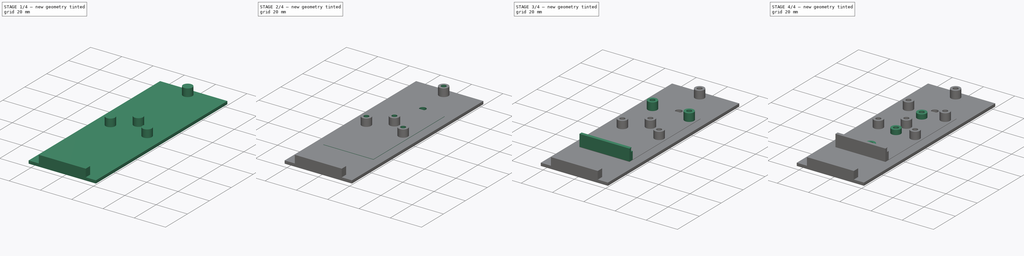
[diagram: build sequence overview — one tinted view per stage of 4, left to right]
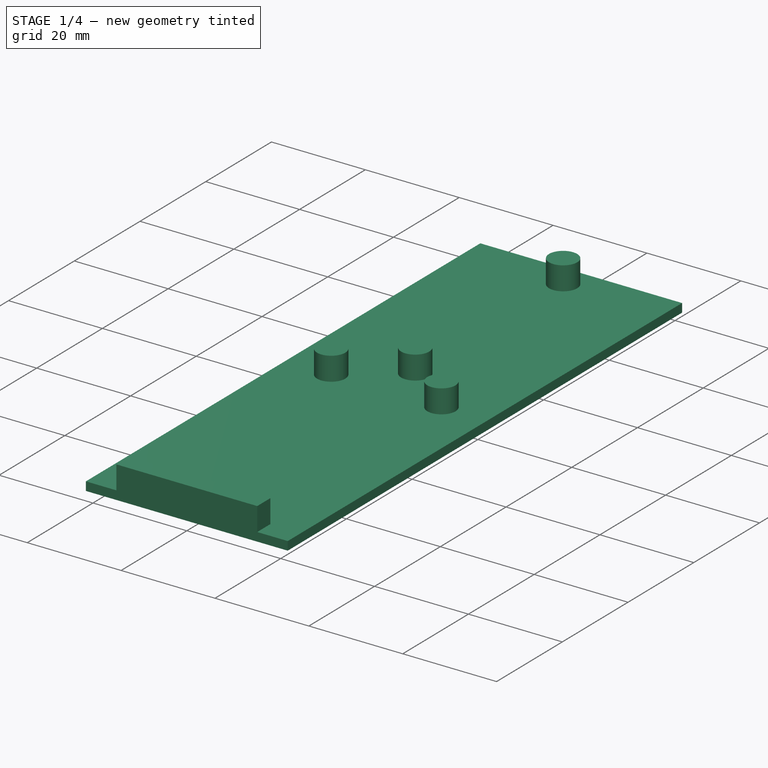
[diagram: stage 1 of 4 — iso view after this stage's code; geometry added in this stage tinted green]
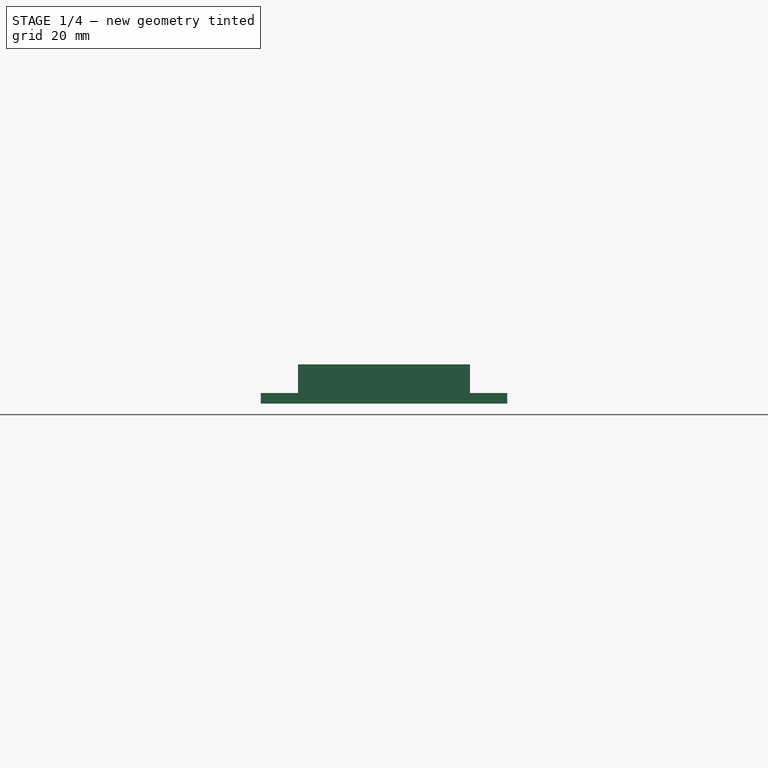
[diagram: stage 1 of 4 — front view after this stage's code; geometry added in this stage tinted green]
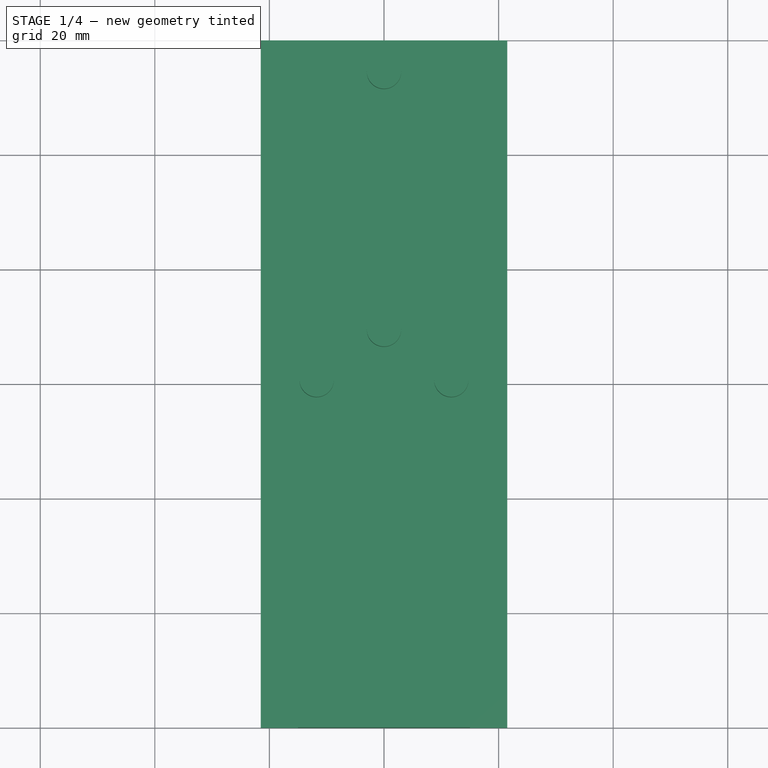
[diagram: stage 1 of 4 — top view after this stage's code; geometry added in this stage tinted green]
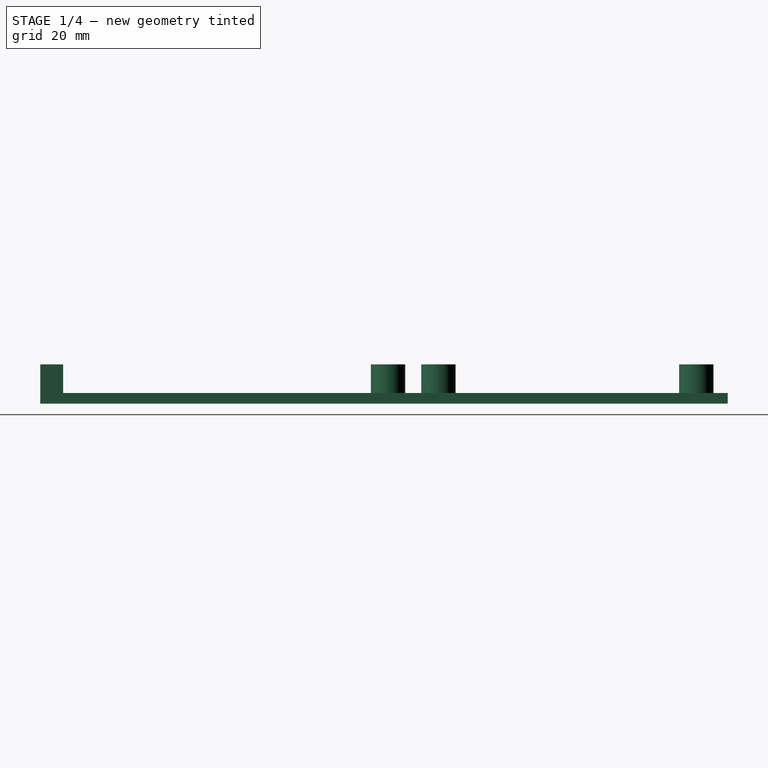
[diagram: stage 1 of 4 — right view after this stage's code; geometry added in this stage tinted green]
FCSTD DOCUMENT  (FreeCAD 0.20R)
Label: dimmer
License: All rights reserved
LicenseURL: http://en.wikipedia.org/wiki/All_rights_reserved
objects: Sketcher::SketchObject×7, PartDesign::Pad×6, PartDesign::Hole×3, PartDesign::Body×2, PartDesign::Pocket×1
note: 29 computed .brp shape members not serialized (recipe doc carries the construction recipe); baked Part::Feature solids carry a one-line shape summary decoded from their .brp

FEATURE [PartDesign::Body] Body  label="pwm_control_plate"
  Group = -> [Sketch,Pad,Sketch002,Pad001,Sketch003,Hole,Pad002,Sketch004,Pad003,Hole001]
  Origin = -> Origin
  Tip = -> Hole001
FEATURE [Sketcher::SketchObject] Sketch005
  FullyConstrained = false
  MapMode = 5
  Support = -> [XY_Plane001]
  sketch-geometry (4):
    g0: LineSegment StartX=-21.5 StartY=60 StartZ=0 EndX=21.5 EndY=60 EndZ=0
    g1: LineSegment StartX=21.5 StartY=60 StartZ=0 EndX=21.5 EndY=-60 EndZ=0
    g2: LineSegment StartX=21.5 StartY=-60 StartZ=0 EndX=-21.5 EndY=-60 EndZ=0
    g3: LineSegment StartX=-21.5 StartY=-60 StartZ=0 EndX=-21.5 EndY=60 EndZ=0
  constraints (10):
    c: Coincident(g0,g1)
    c: Coincident(g1,g2)
    c: Coincident(g2,g3)
    c: Coincident(g3,g0)
    c: Horizontal(g2)
    c: Vertical(g1)
    c: Symmetric(g0,g0,g-2)
    c: Symmetric(g2,g0,g-1)
    c: DistanceY(g3,g3) = 120
    c: DistanceX(g0,g0) = 43
FEATURE [PartDesign::Pad] Pad004  label="площадка основания001"
  Direction = (1,1,1)
  Length = 1.85
  Length2 = 100
  Profile = -> Sketch005
  Type = 0
FEATURE [Sketcher::SketchObject] Sketch006
  ExternalGeometry = -> [Pad004]
  FullyConstrained = false
  MapMode = 5
  Placement = pos=(0,0,1.85) rot=(0,0,1;0rad)
  Support = -> [Pad004]
  sketch-geometry (18):
    g0: Circle CenterX=0 CenterY=54.5 CenterZ=0 NormalX=0 NormalY=0 NormalZ=1 AngleXU=0 Radius=3
    g1: Circle CenterX=0 CenterY=9.5 CenterZ=0 NormalX=0 NormalY=0 NormalZ=1 AngleXU=0 Radius=3
    g2: LineSegment StartX=-21.1 StartY=59 StartZ=0 EndX=21.1 EndY=59 EndZ=0
    g3: LineSegment StartX=21.1 StartY=59 StartZ=0 EndX=21.1 EndY=5 EndZ=0
    g4: LineSegment StartX=21.1 StartY=5 StartZ=0 EndX=-21.1 EndY=5 EndZ=0
    g5: LineSegment StartX=-21.1 StartY=5 StartZ=0 EndX=-21.1 EndY=59 EndZ=0
    g6: LineSegment StartX=0 StartY=54.5 StartZ=0 EndX=0 EndY=59 EndZ=0
    g7: LineSegment StartX=0 StartY=9.5 StartZ=0 EndX=0 EndY=5 EndZ=0
    g8: LineSegment StartX=-15 StartY=4 StartZ=0 EndX=15 EndY=4 EndZ=0
    g9: LineSegment StartX=15 StartY=4 StartZ=0 EndX=15 EndY=-59 EndZ=0
    g10: LineSegment StartX=15 StartY=-59 StartZ=0 EndX=-15 EndY=-59 EndZ=0
    g11: LineSegment StartX=-15 StartY=-59 StartZ=0 EndX=-15 EndY=4 EndZ=0
    g12: Circle CenterX=-11.75 CenterY=0.7 CenterZ=0 NormalX=0 NormalY=0 NormalZ=1 AngleXU=0 Radius=3
    g13: Circle CenterX=11.75 CenterY=0.7 CenterZ=0 NormalX=0 NormalY=0 NormalZ=1 AngleXU=0 Radius=3
    g14: LineSegment StartX=-15 StartY=-60 StartZ=0 EndX=15 EndY=-60 EndZ=0
    g15: LineSegment StartX=15 StartY=-60 StartZ=0 EndX=15 EndY=-56 EndZ=0
    g16: LineSegment StartX=15 StartY=-56 StartZ=0 EndX=-15 EndY=-56 EndZ=0
    g17: LineSegment StartX=-15 StartY=-56 StartZ=0 EndX=-15 EndY=-60 EndZ=0
  constraints (47):
    c: PointOnObject(g0,g-2)
    c: PointOnObject(g1,g-2)
    c: DistanceY(g1,g0) = 45
    c: Coincident(g2,g3)
    c: Coincident(g3,g4)
    c: Coincident(g4,g5)
    c: Coincident(g5,g2)
    c: Horizontal(g4)
    c: Vertical(g3)
    c: Vertical(g5)
    c: DistanceX(g2,g2) = 42.2
    c: DistanceY(g5,g5) = 54
    c: Symmetric(g2,g2,g-2)
    c: Coincident(g6,g0)
    c: PointOnObject(g6,g2)
    c: Vertical(g6)
    c: Coincident(g7,g1)
    c: PointOnObject(g7,g4)
    c: Vertical(g7)
    c: Equal(g7,g6)
    c: Coincident(g8,g9)
    c: Coincident(g9,g10)
    c: Coincident(g10,g11)
    c: Coincident(g11,g8)
    c: Horizontal(g10)
    c: Vertical(g9)
    c: Vertical(g11)
    c: DistanceY(g11,g11) = 63
    c: DistanceX(g8,g8) = 30
    c: Symmetric(g8,g8,g-2)
    c: Symmetric(g12,g13,g-2)
    c: DistanceX(g12,g13) = 23.5
    c: DistanceY(g13,g8) = 3.3
    c: Coincident(g14,g15)
    c: Coincident(g15,g16)
    c: Coincident(g16,g17)
    c: Coincident(g17,g14)
    c: Horizontal(g14)
    c: Horizontal(g16)
    c: Vertical(g15)
    c: Vertical(g17)
    c: PointOnObject(g14,g-3)
    c: PointOnObject(g15,g9)
    c: PointOnObject(g16,g11)
    c: DistanceY(g17,g17) = 4
    c: DistanceY(g-3,g10) = 1
    c: DistanceY(g2,g-4) = 1
FEATURE [PartDesign::Pad] Pad005  label="опоры плат"
  BaseFeature = -> Pad004
  Direction = (1,1,1)
  Length = 5
  Length2 = 100
  Profile = -> Sketch006
  Type = 0
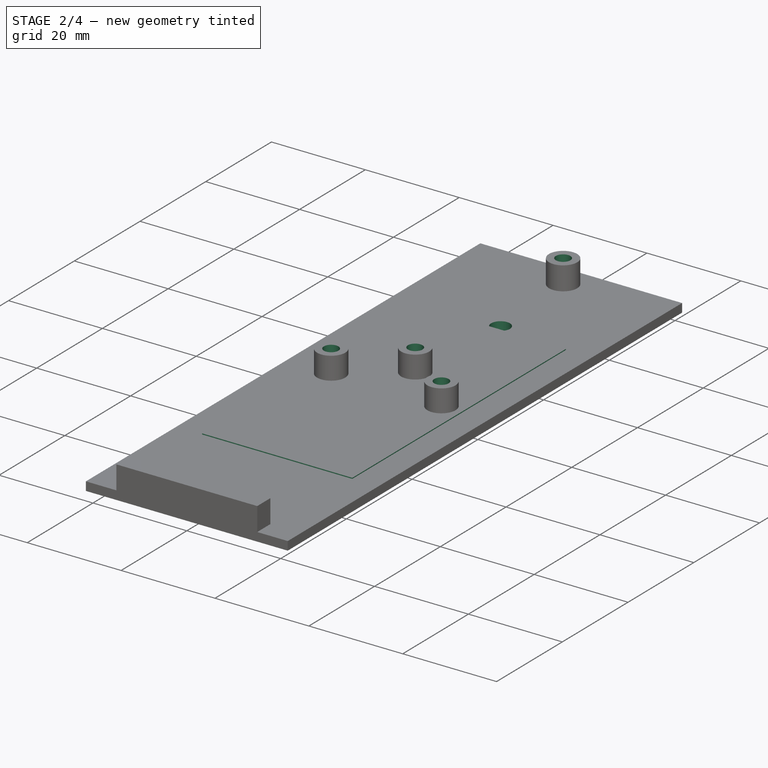
[diagram: stage 2 of 4 — iso view after this stage's code; geometry added in this stage tinted green]
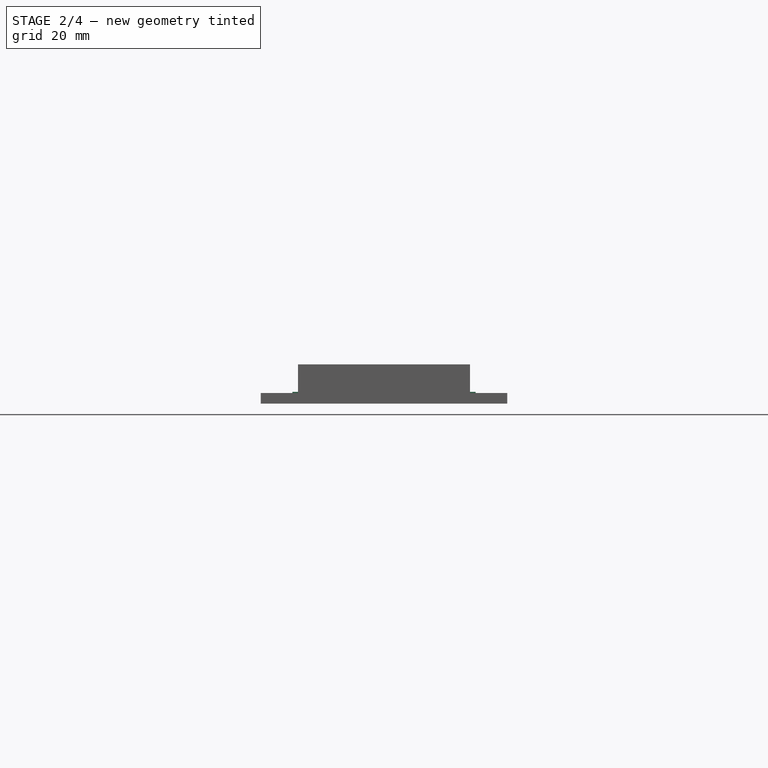
[diagram: stage 2 of 4 — front view after this stage's code; geometry added in this stage tinted green]
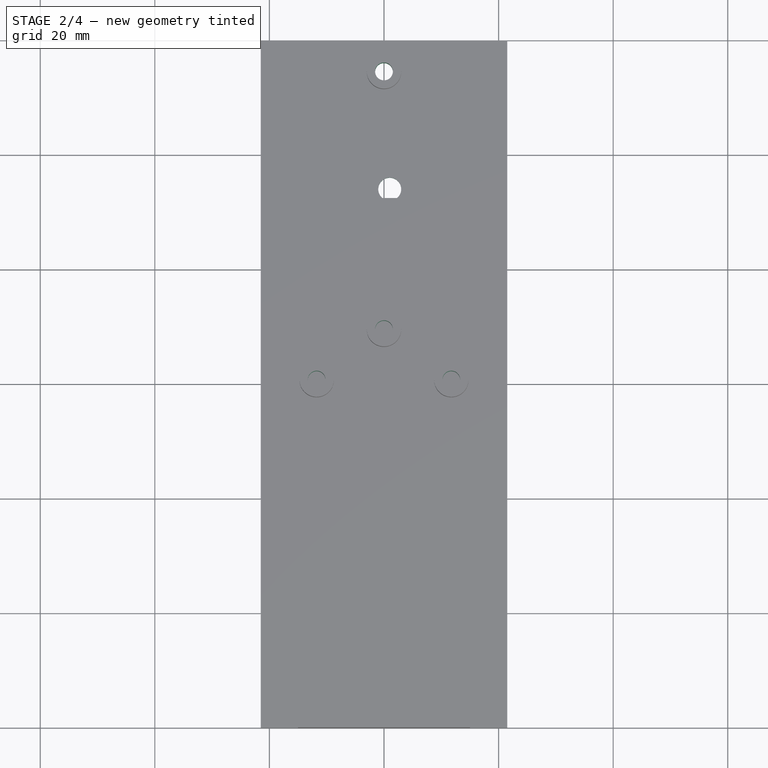
[diagram: stage 2 of 4 — top view after this stage's code; geometry added in this stage tinted green]
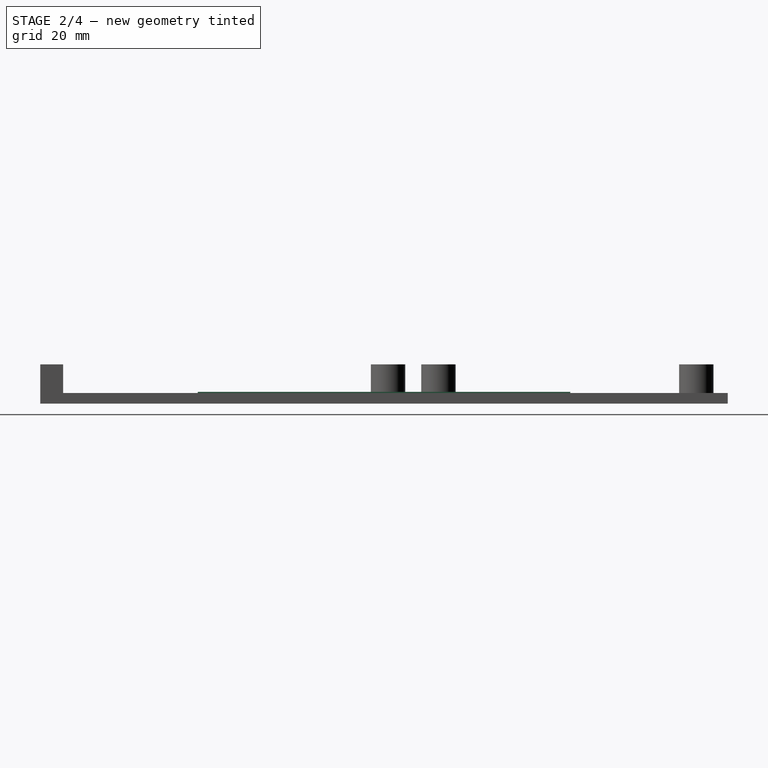
[diagram: stage 2 of 4 — right view after this stage's code; geometry added in this stage tinted green]
FEATURE [Sketcher::SketchObject] Sketch
  FullyConstrained = false
  MapMode = 5
  Support = -> [XY_Plane]
  sketch-geometry (4):
    g0: LineSegment StartX=-16 StartY=32.5 StartZ=0 EndX=16 EndY=32.5 EndZ=0
    g1: LineSegment StartX=16 StartY=32.5 StartZ=0 EndX=16 EndY=-32.5 EndZ=0
    g2: LineSegment StartX=16 StartY=-32.5 StartZ=0 EndX=-16 EndY=-32.5 EndZ=0
    g3: LineSegment StartX=-16 StartY=-32.5 StartZ=0 EndX=-16 EndY=32.5 EndZ=0
  constraints (10):
    c: Coincident(g0,g1)
    c: Coincident(g1,g2)
    c: Coincident(g2,g3)
    c: Coincident(g3,g0)
    c: Horizontal(g2)
    c: Vertical(g1)
    c: Symmetric(g0,g0,g-2)
    c: Symmetric(g2,g0,g-1)
    c: DistanceY(g3,g3) = 65
    c: DistanceX(g0,g0) = 32
FEATURE [PartDesign::Pad] Pad  label="площадка основания"
  Direction = (1,1,1)
  Length = 2.05
  Length2 = 100
  Profile = -> Sketch
  Type = 0
FEATURE [PartDesign::Hole] Hole002
  BaseFeature = -> Pad005
  CustomThreadClearance = 0
  Depth = 25
  DepthType = 0
  Diameter = 3.1
  DrillForDepth = false
  DrillPoint = 1
  DrillPointAngle = 118
  HoleCutCountersinkAngle = 90
  HoleCutCustomValues = false
  HoleCutDepth = 0
  HoleCutDiameter = 0
  HoleCutType = 0
  ModelThread = false
  Profile = -> Pad005 [Face18,Face19,Face17,Face16]
  Tapered = false
  TaperedAngle = 90
  ThreadClass = 0
  ThreadDepth = 23.5
  ThreadDepthType = 0
  ThreadDirection = 0
  ThreadFit = 0
  ThreadSize = 0
  ThreadType = 0
  Threaded = false
  UseCustomThreadClearance = false
FEATURE [Sketcher::SketchObject] Sketch007
  ExternalGeometry = -> [Pad005]
  FullyConstrained = false
  MapMode = 5
  Placement = pos=(0,0,2.05) rot=(0,0,1;0rad)
  sketch-geometry (4):
    g0: Circle CenterX=1 CenterY=34.0351 CenterZ=0 NormalX=0 NormalY=0 NormalZ=1 AngleXU=0 Radius=2
    g1: Circle CenterX=1 CenterY=-28.9649 CenterZ=0 NormalX=0 NormalY=0 NormalZ=1 AngleXU=0 Radius=2
    g2: Circle CenterX=1 CenterY=-12.9649 CenterZ=0 NormalX=0 NormalY=0 NormalZ=1 AngleXU=0 Radius=2
    g3: Circle CenterX=1 CenterY=18.0351 CenterZ=0 NormalX=0 NormalY=0 NormalZ=1 AngleXU=0 Radius=2
  constraints (10):
    c: Diameter(g1) = 4
    c: Equal(g1,g0)
    c: DistanceY(g1,g0) = 63
    c: Equal(g1,g2) = 4
    c: DistanceY(g2,g0) = 47
    c: DistanceY(g1,g3) = 47
    c: Vertical(g0,g3)
    c: Vertical(g3,g2)
    c: Vertical(g2,g1)
    c: DistanceX(g-1,g2) = 1
FEATURE [PartDesign::Pocket] Pocket  label="отверстия крепления к корпусу"
  BaseFeature = -> Hole002
  Direction = (1,1,1)
  Length = 5
  Length2 = 100
  Profile = -> Sketch007
  Type = 1
FEATURE [PartDesign::Body] Body001  label="pwm_control_plate001"
  Group = -> [Sketch005,Pad004,Sketch006,Pad005,Sketch007,Hole002,Pocket]
  Origin = -> Origin001
  Placement = pos=(-53,0,0) rot=(0,0,1;0rad)
  Tip = -> Pocket
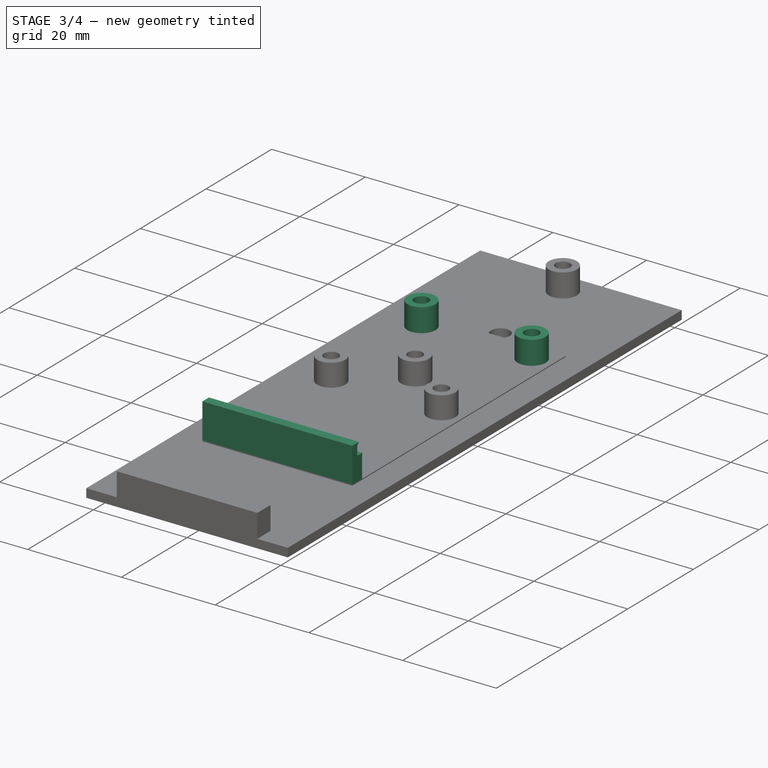
[diagram: stage 3 of 4 — iso view after this stage's code; geometry added in this stage tinted green]
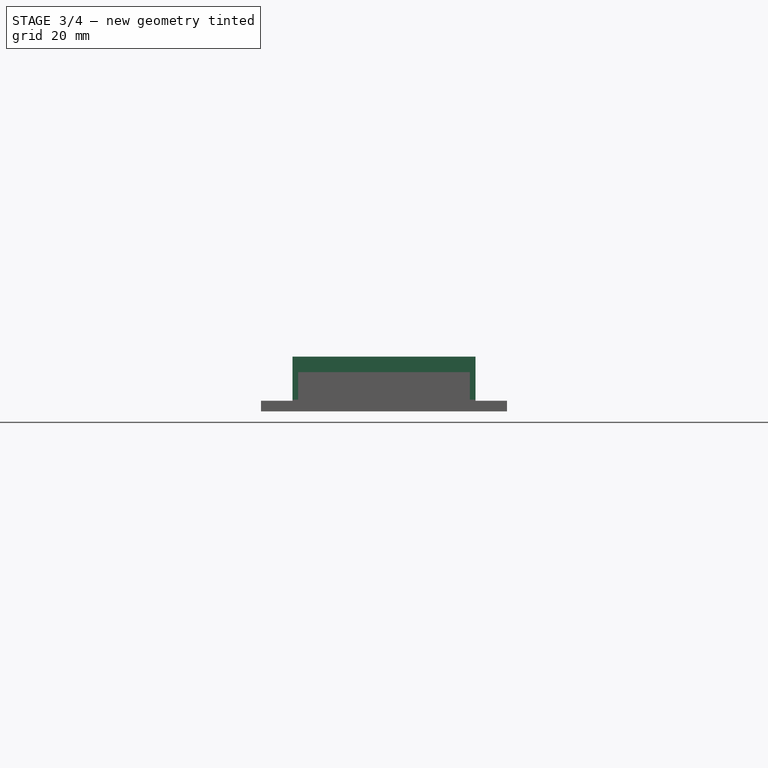
[diagram: stage 3 of 4 — front view after this stage's code; geometry added in this stage tinted green]
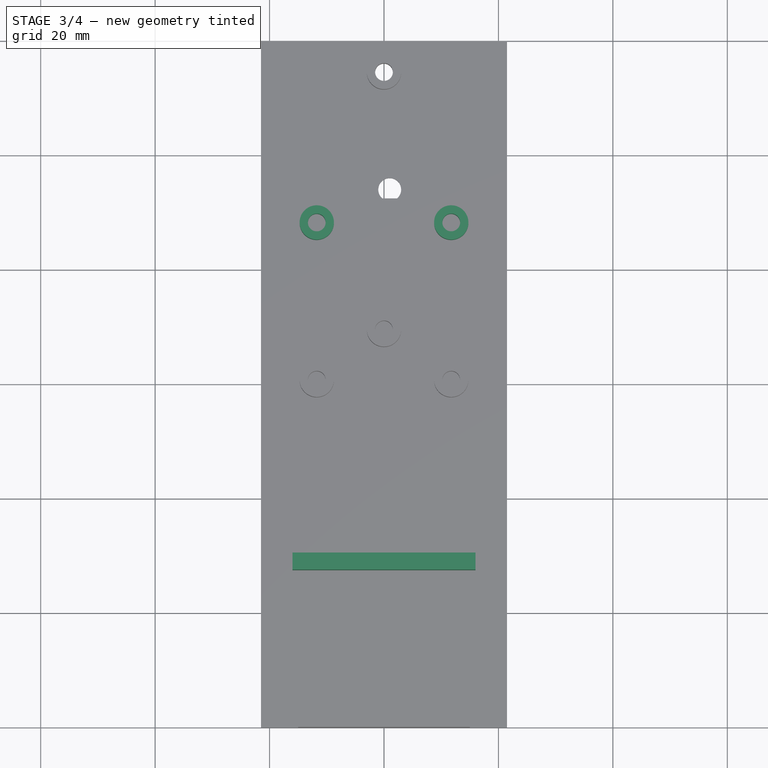
[diagram: stage 3 of 4 — top view after this stage's code; geometry added in this stage tinted green]
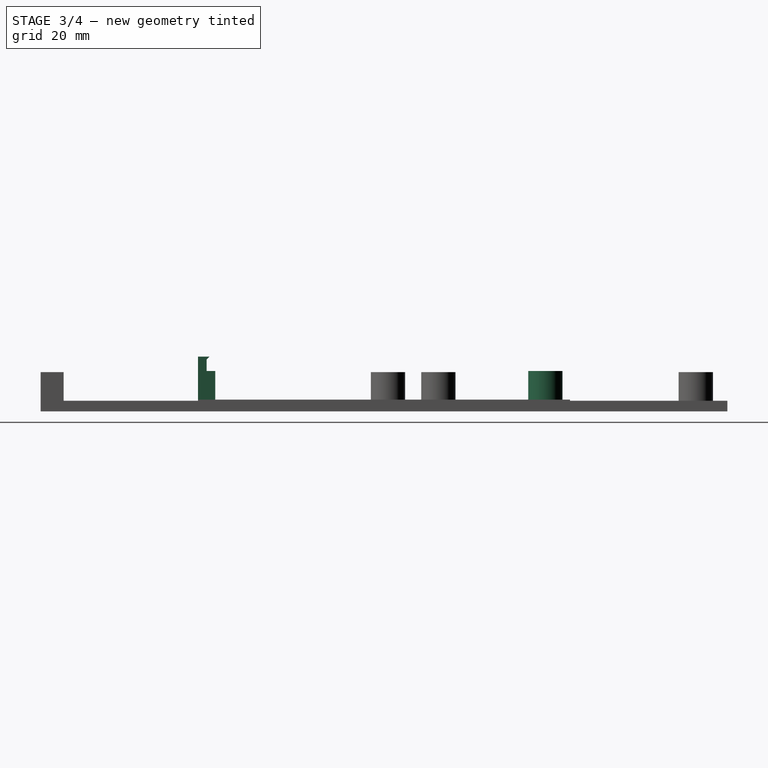
[diagram: stage 3 of 4 — right view after this stage's code; geometry added in this stage tinted green]
FEATURE [Sketcher::SketchObject] Sketch002
  ExternalGeometry = -> [Pad]
  FullyConstrained = false
  MapMode = 5
  Placement = pos=(0,0,2.05) rot=(0,0,1;0rad)
  Support = -> [Pad]
  sketch-geometry (10):
    g0: LineSegment StartX=-15 StartY=31.5 StartZ=0 EndX=15 EndY=31.5 EndZ=0
    g1: LineSegment StartX=15 StartY=31.5 StartZ=0 EndX=15 EndY=-31.5 EndZ=0
    g2: LineSegment StartX=15 StartY=-31.5 StartZ=0 EndX=-15 EndY=-31.5 EndZ=0
    g3: LineSegment StartX=-15 StartY=-31.5 StartZ=0 EndX=-15 EndY=31.5 EndZ=0
    g4: Circle CenterX=-11.75 CenterY=28.2 CenterZ=0 NormalX=0 NormalY=0 NormalZ=1 AngleXU=0 Radius=3
    g5: Circle CenterX=11.75 CenterY=28.2 CenterZ=0 NormalX=0 NormalY=0 NormalZ=1 AngleXU=0 Radius=3
    g6: LineSegment StartX=-8.75 StartY=54.6473 StartZ=0 EndX=8.75 EndY=54.6473 EndZ=0
    g7: LineSegment StartX=8.75 StartY=54.6473 StartZ=0 EndX=8.75 EndY=34.1473 EndZ=0
    g8: LineSegment StartX=8.75 StartY=34.1473 StartZ=0 EndX=-8.75 EndY=34.1473 EndZ=0
    g9: LineSegment StartX=-8.75 StartY=34.1473 StartZ=0 EndX=-8.75 EndY=54.6473 EndZ=0
  constraints (26):
    c: Coincident(g0,g1)
    c: Coincident(g1,g2)
    c: Coincident(g2,g3)
    c: Coincident(g3,g0)
    c: Horizontal(g2)
    c: Vertical(g1)
    c: Vertical(g3)
    c: DistanceY(g3,g3) = 63
    c: DistanceX(g0,g0) = 30
    c: Symmetric(g0,g0,g-2)
    c: Symmetric(g4,g5,g-2)
    c: DistanceX(g4,g5) = 23.5
    c: DistanceY(g5,g0) = 3.3
    c: DistanceY(g-3,g2) = 1
    c: Diameter(g5) = 6
    c: Equal(g5,g4)
    c: Coincident(g6,g7)
    c: Coincident(g7,g8)
    c: Coincident(g8,g9)
    c: Coincident(g9,g6)
    c: Horizontal(g8)
    c: Vertical(g7)
    c: Vertical(g9)
    c: DistanceX(g6,g6) = 17.5
    c: DistanceY(g7,g7) = 20.5
    c: Symmetric(g6,g6,g-2)
FEATURE [PartDesign::Pad] Pad001  label="опоры"
  BaseFeature = -> Pad
  Direction = (1,1,1)
  Length = 5
  Length2 = 100
  Profile = -> Sketch002
  Type = 0
FEATURE [Sketcher::SketchObject] Sketch003
  ExternalGeometry = -> [Pad001]
  FullyConstrained = false
  MapMode = 5
  Placement = pos=(-16,0,0) rot=(0.57735,-0.57735,-0.57735;2.0944rad)
  Support = -> [Pad001]
  sketch-geometry (7):
    g0: LineSegment StartX=32.5 StartY=2.05 StartZ=0 EndX=32.5 EndY=9.55 EndZ=0
    g1: LineSegment StartX=32.5 StartY=9.55 StartZ=0 EndX=30.5 EndY=9.55 EndZ=0
    g2: LineSegment StartX=31 StartY=7.05 StartZ=0 EndX=29.5 EndY=7.05 EndZ=0
    g3: LineSegment StartX=29.5 StartY=7.05 StartZ=0 EndX=29.5 EndY=2.05 EndZ=0
    g4: LineSegment StartX=29.5 StartY=2.05 StartZ=0 EndX=32.5 EndY=2.05 EndZ=0
    g5: LineSegment StartX=31 StartY=7.05 StartZ=0 EndX=31 EndY=9.05 EndZ=0
    g6: LineSegment StartX=31 StartY=9.05 StartZ=0 EndX=30.5 EndY=9.55 EndZ=0
  constraints (20):
    c: Coincident(g0,g-3)
    c: Vertical(g0)
    c: Coincident(g1,g0)
    c: Horizontal(g1)
    c: Coincident(g3,g2)
    c: PointOnObject(g3,g-3)
    c: Vertical(g3)
    c: Coincident(g4,g3)
    c: Coincident(g4,g0)
    c: Horizontal(g2)
    c: DistanceX(g4,g4) = 3
    c: DistanceX(g2,g2) = 1.5
    c: Coincident(g5,g2)
    c: Vertical(g5)
    c: Coincident(g6,g5)
    c: Coincident(g6,g1)
    c: DistanceY(g5,g5) = 2
    c: DistanceY(g3,g3) = 5
    c: Angle(g6,g1) = 0.785398
    c: DistanceX(g1,g1) = 2
FEATURE [PartDesign::Hole] Hole
  BaseFeature = -> Pad001
  CustomThreadClearance = 0
  Depth = 25
  DepthType = 0
  Diameter = 3.1
  DrillForDepth = false
  DrillPoint = 1
  DrillPointAngle = 118
  HoleCutCountersinkAngle = 90
  HoleCutCustomValues = false
  HoleCutDepth = 0
  HoleCutDiameter = 0
  HoleCutType = 0
  ModelThread = false
  Profile = -> Pad001 [Face9,Face10]
  Tapered = false
  TaperedAngle = 90
  ThreadClass = 0
  ThreadDepth = 23.5
  ThreadDepthType = 0
  ThreadDirection = 0
  ThreadFit = 0
  ThreadSize = 0
  ThreadType = 0
  Threaded = false
  UseCustomThreadClearance = false
FEATURE [PartDesign::Pad] Pad002  label="скоба"
  BaseFeature = -> Hole
  Direction = (1,1,1)
  Length = 10
  Length2 = 100
  Profile = -> Sketch003
  Reversed = true
  Type = 3
  UpToFace = -> Pad001 [Face3]
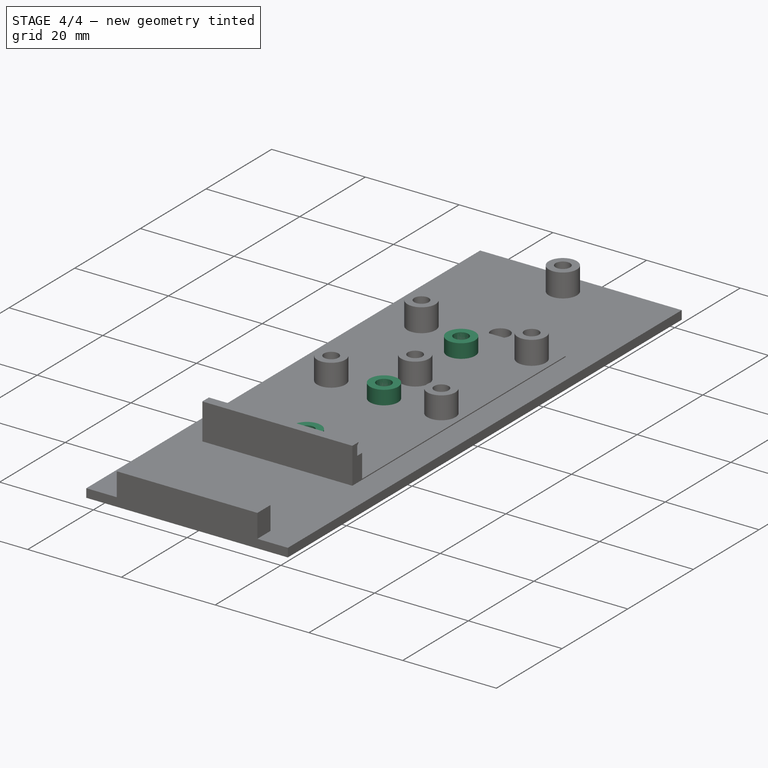
[diagram: stage 4 of 4 — iso view after this stage's code; geometry added in this stage tinted green]
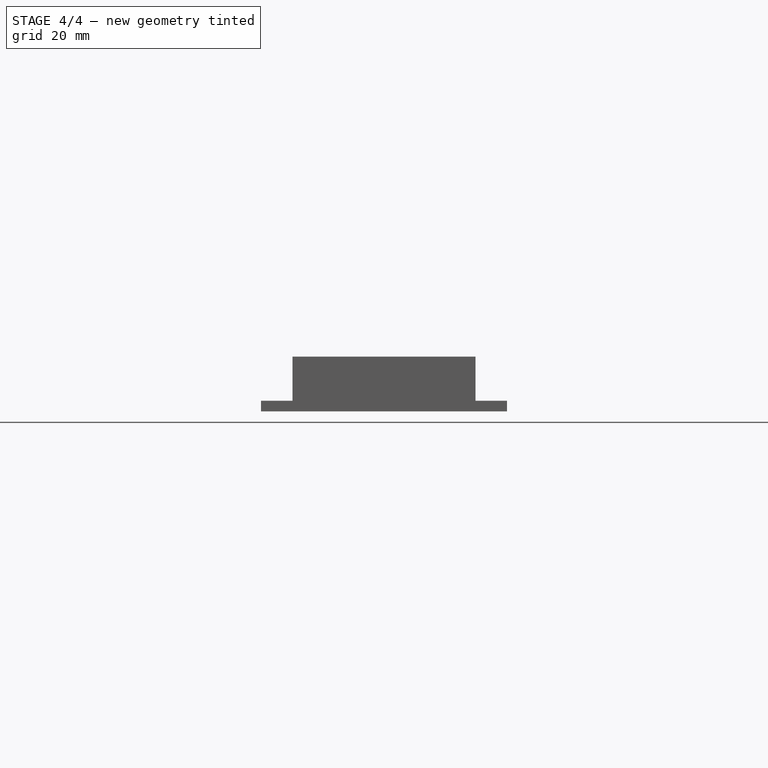
[diagram: stage 4 of 4 — front view after this stage's code; geometry added in this stage tinted green]
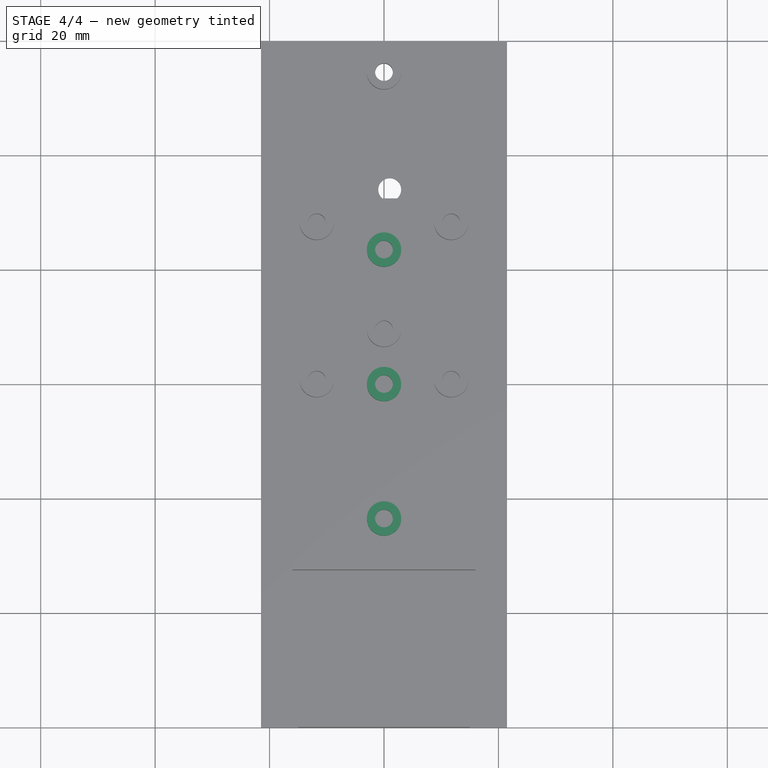
[diagram: stage 4 of 4 — top view after this stage's code; geometry added in this stage tinted green]
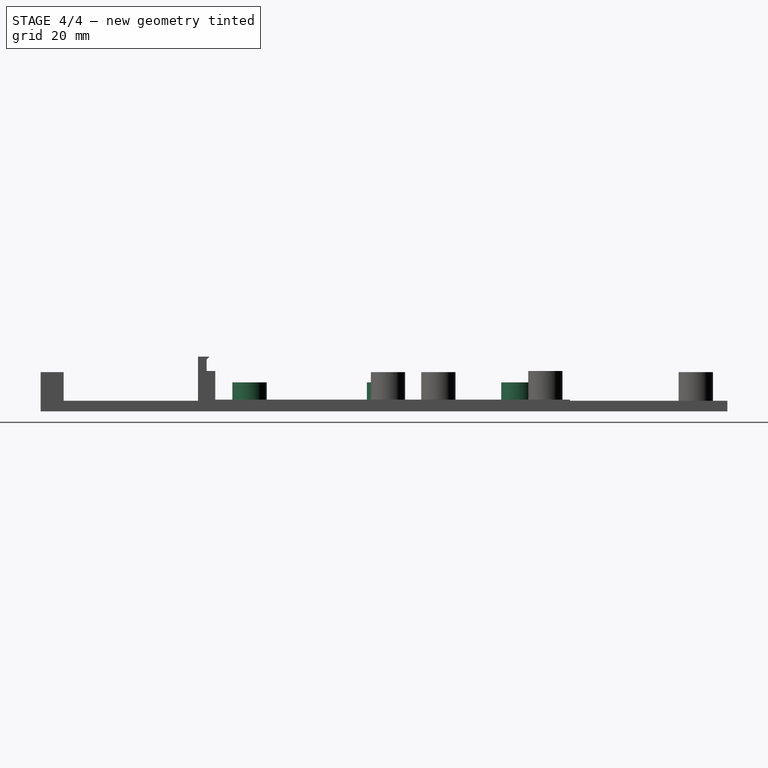
[diagram: stage 4 of 4 — right view after this stage's code; geometry added in this stage tinted green]
FEATURE [Sketcher::SketchObject] Sketch004
  FullyConstrained = false
  MapMode = 5
  Placement = pos=(0,0,2.05) rot=(0,0,1;0rad)
  Support = -> [Pad002]
  sketch-geometry (3):
    g0: Circle CenterX=0 CenterY=0 CenterZ=0 NormalX=0 NormalY=0 NormalZ=1 AngleXU=0 Radius=3
    g1: Circle CenterX=0 CenterY=23.5 CenterZ=0 NormalX=0 NormalY=0 NormalZ=1 AngleXU=0 Radius=3
    g2: Circle CenterX=0 CenterY=-23.5 CenterZ=0 NormalX=0 NormalY=0 NormalZ=1 AngleXU=0 Radius=3
  constraints (7):
    c: Coincident(g0,g-1)
    c: PointOnObject(g1,g-2)
    c: DistanceY(g2,g1) = 47
    c: Diameter(g2) = 6
    c: Equal(g2,g0)
    c: Equal(g2,g1)
    c: Symmetric(g1,g2,g-1)
FEATURE [PartDesign::Pad] Pad003
  BaseFeature = -> Pad002
  Direction = (1,1,1)
  Length = 3
  Length2 = 100
  Profile = -> Sketch004
  Type = 0
FEATURE [PartDesign::Hole] Hole001
  BaseFeature = -> Pad003
  CustomThreadClearance = 0
  Depth = 25
  DepthType = 0
  Diameter = 3.1
  DrillForDepth = false
  DrillPoint = 1
  DrillPointAngle = 118
  HoleCutCountersinkAngle = 90
  HoleCutCustomValues = false
  HoleCutDepth = 0
  HoleCutDiameter = 0
  HoleCutType = 0
  ModelThread = false
  Profile = -> Pad003 [Face26,Face25,Face24]
  Tapered = false
  TaperedAngle = 90
  ThreadClass = 0
  ThreadDepth = 23.5
  ThreadDepthType = 0
  ThreadDirection = 0
  ThreadFit = 0
  ThreadSize = 0
  ThreadType = 0
  Threaded = false
  UseCustomThreadClearance = false
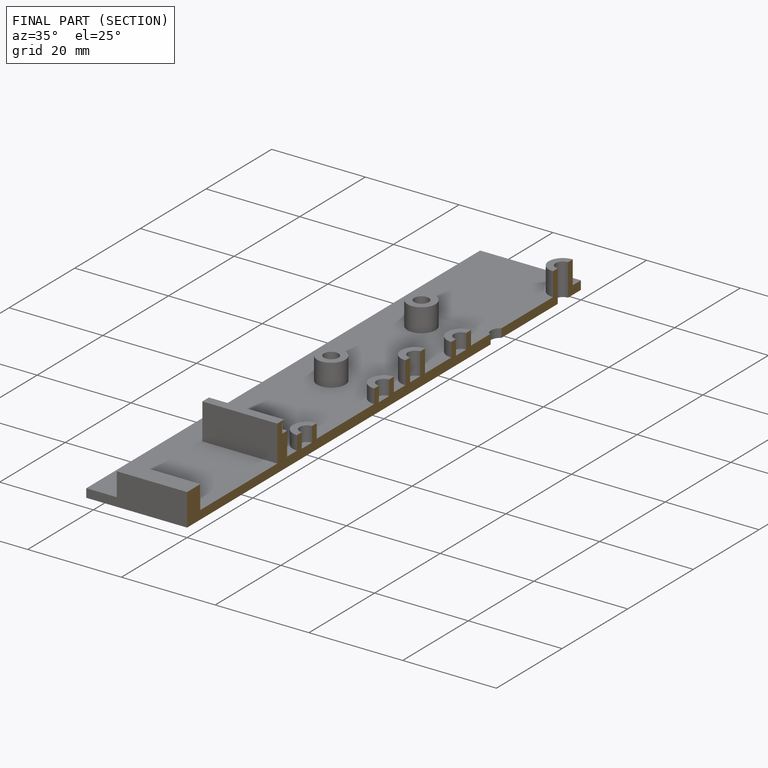
[diagram: finished part — half-section view (interior)]
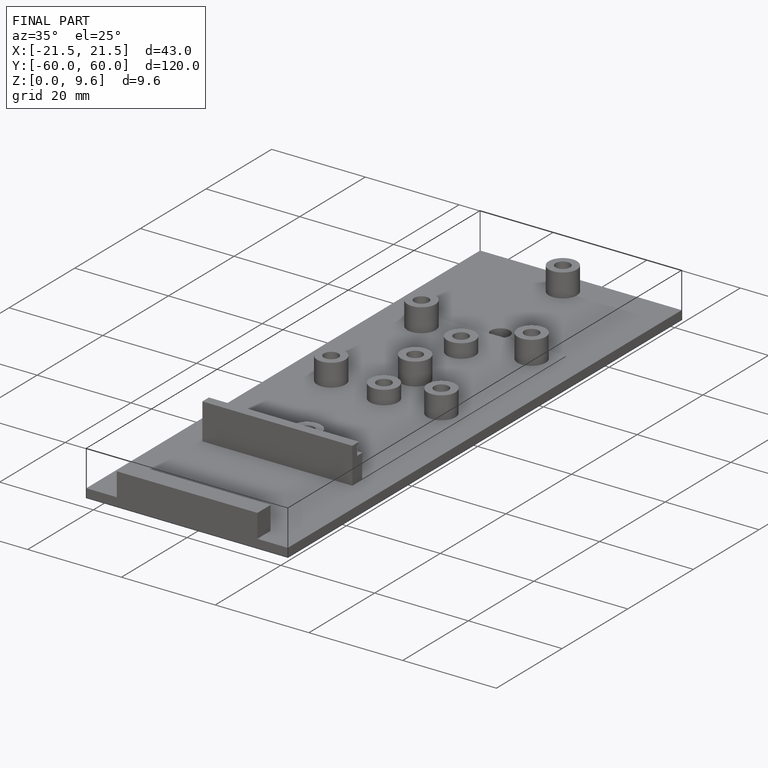
[diagram: finished part — iso view with bounding-box wireframe]
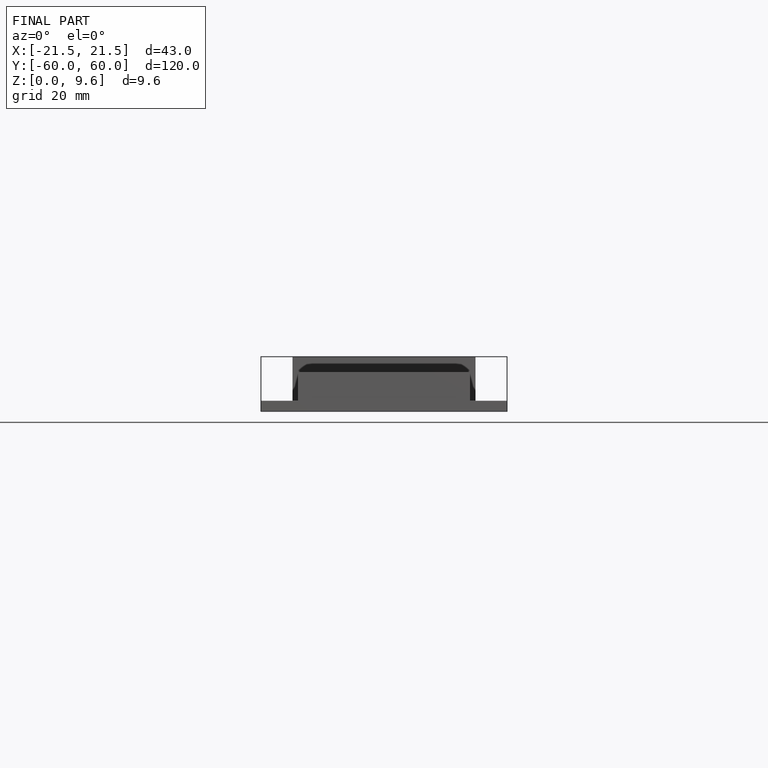
[diagram: finished part — front view with bounding-box wireframe]
